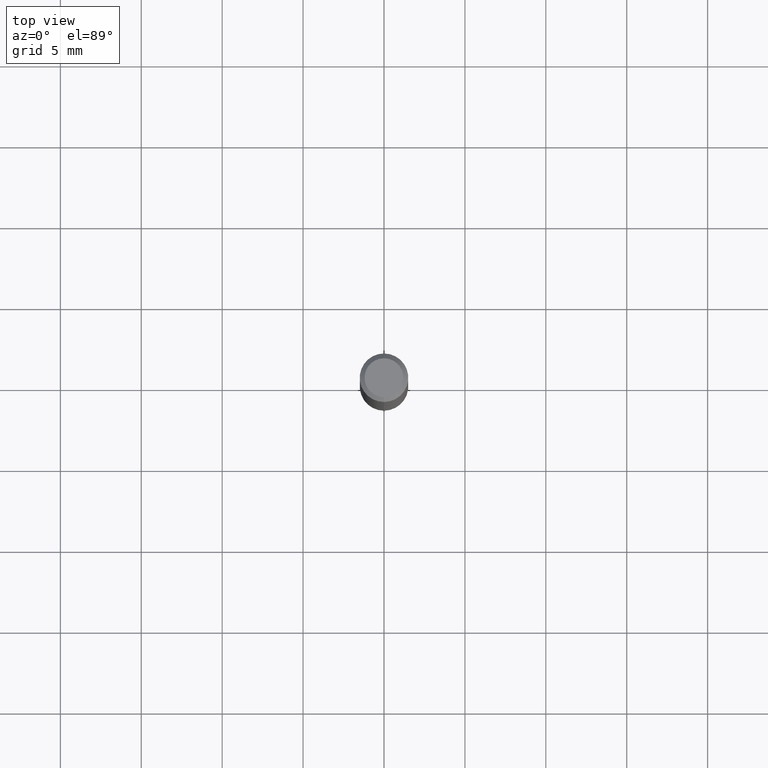
[diagram: clean part render]
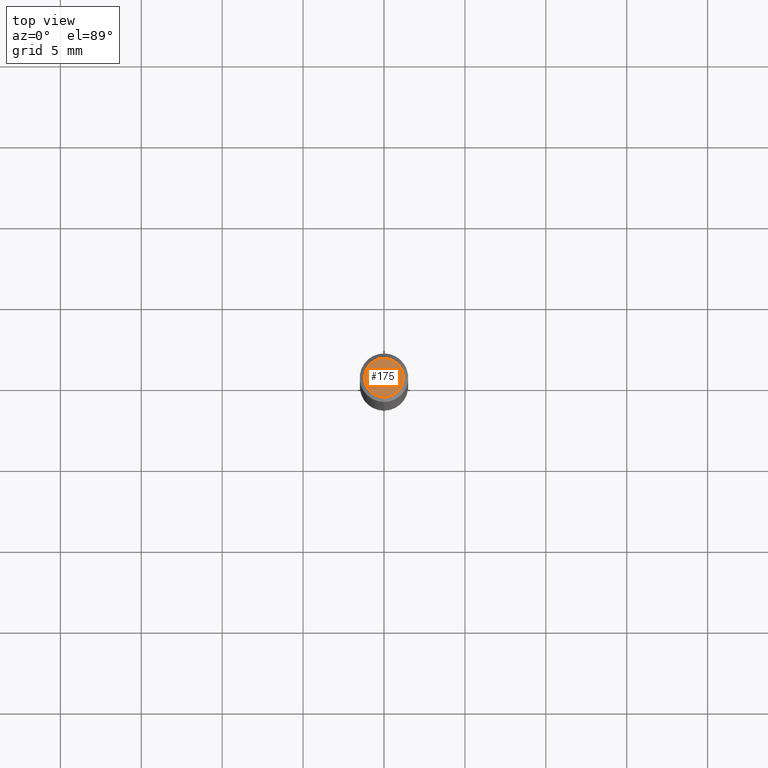
[diagram: same view with one face highlighted and labeled with its STEP entity id]
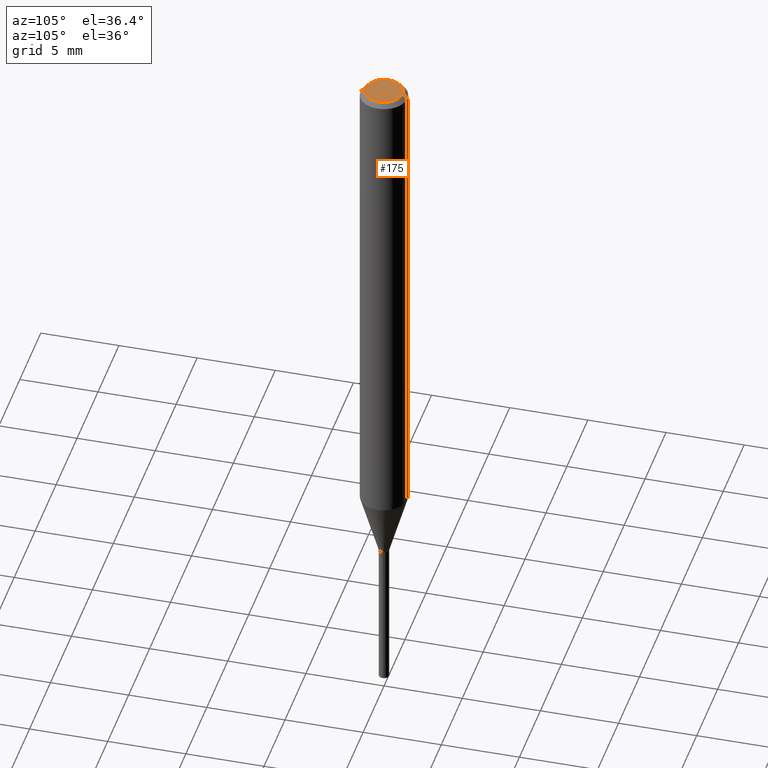
[diagram: same view with one face highlighted and labeled with its STEP entity id]
A machine part, top view. The second image highlights one B-rep face of the part: STEP entity #175.
A second angle (auxiliary view) of the same face is appended — the face is thin or edge-on in the first view.
In plain terms, the highlighted planar face has unit normal (-0, 0, 1).
Its self-contained STEP definition (entity closure, byte-faithful):
#131=VERTEX_POINT('',#270);
#137=VERTEX_POINT('',#276);
#145=EDGE_CURVE('',#137,#131,#284,.T.);
#175=ADVANCED_FACE('',(#317),#318,.T.);
#195=EDGE_CURVE('',#131,#137,#343,.T.);
#270=CARTESIAN_POINT('',(0.0,1.2,0.0));
#276=CARTESIAN_POINT('',(1.46952762458685E-016,-1.2,0.0));
#284=CIRCLE('',#446,1.2);
#317=FACE_OUTER_BOUND('',#491,.T.);
#318=PLANE('',#492);
#343=CIRCLE('',#518,1.2);
#446=AXIS2_PLACEMENT_3D('',#592,#593,#594);
#491=EDGE_LOOP('',(#635,#636));
#492=AXIS2_PLACEMENT_3D('',#637,#638,#639);
#518=AXIS2_PLACEMENT_3D('',#682,#683,#684);
#592=CARTESIAN_POINT('',(0.0,0.0,0.0));
#593=DIRECTION('',(0.0,0.0,-1.0));
#594=DIRECTION('',(0.0,1.0,0.0));
#635=ORIENTED_EDGE('',*,*,#195,.F.);
#636=ORIENTED_EDGE('',*,*,#145,.F.);
#637=CARTESIAN_POINT('',(0.0,0.6,0.0));
#638=DIRECTION('',(-0.0,0.0,1.0));
#639=DIRECTION('',(0.0,-1.0,0.0));
#682=CARTESIAN_POINT('',(0.0,0.0,0.0));
#683=DIRECTION('',(0.0,0.0,-1.0));
#684=DIRECTION('',(0.0,1.0,0.0));